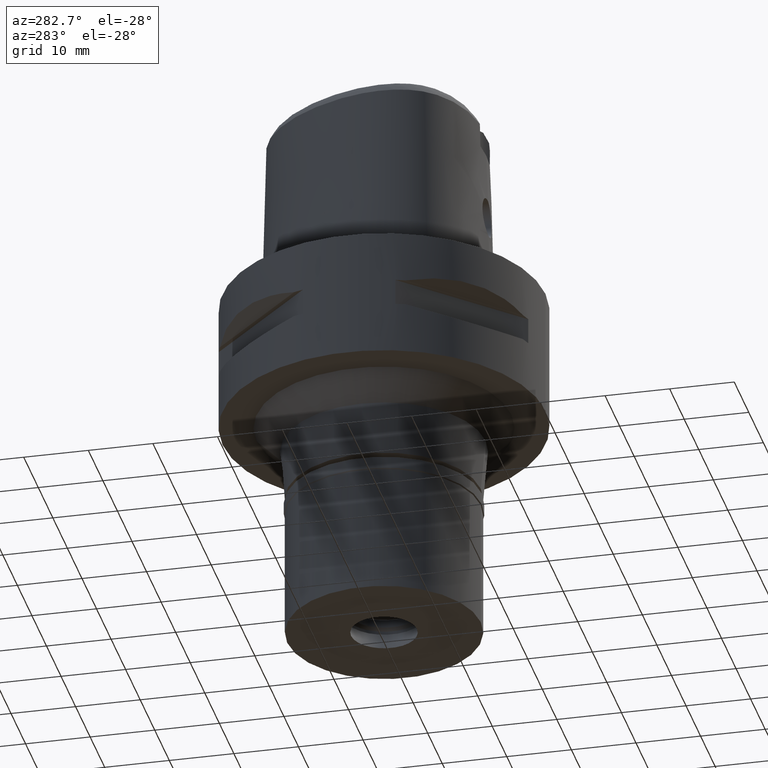
[diagram: clean part render]
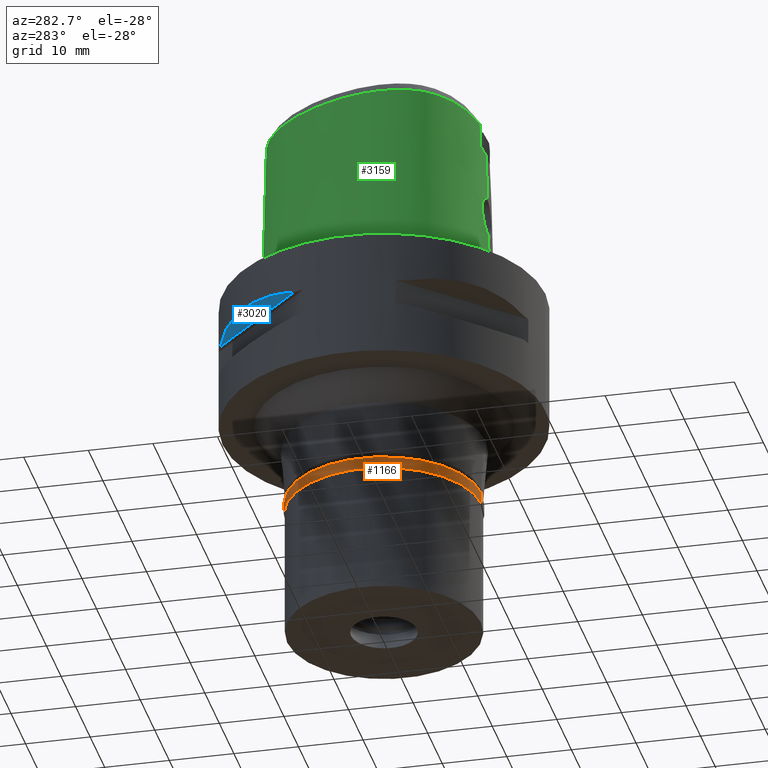
[diagram: same view with three faces highlighted in distinct colors, each labeled with its STEP entity id]
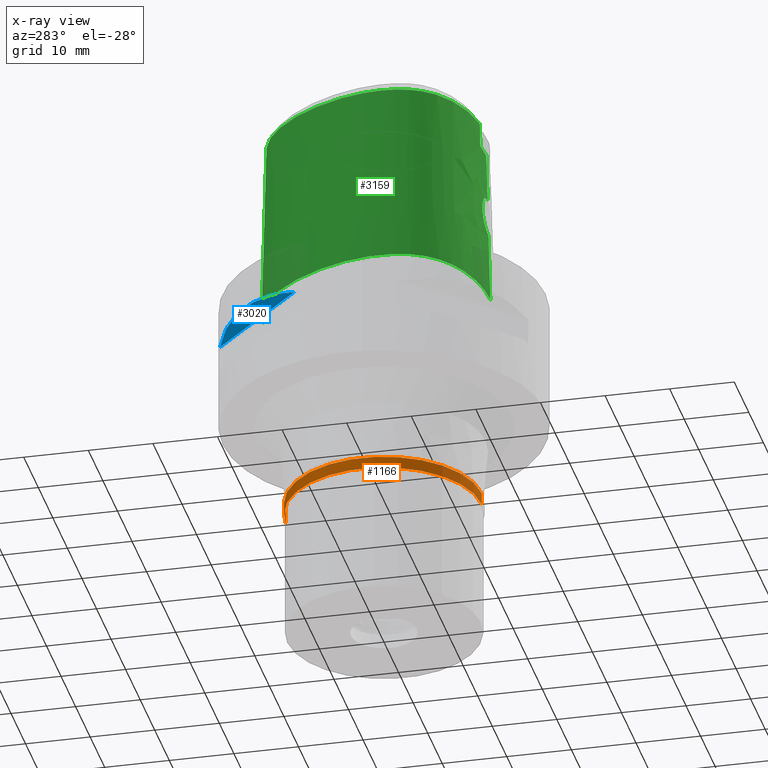
[diagram: x-ray of the same camera — body ghosted, the three highlighted faces saturated]
A machine part, auxiliary view with three faces highlighted in distinct colors.
The next image is the same camera in x-ray (body ghosted, the three faces saturated) — at least one of them is partly hidden behind the body in this view.
Their STEP definitions:

[orange] entity #1166 — the highlighted cylindrical surface (partial cylindrical patch) has radius 15.15 mm, axis along (0, 0, -1).
#61 = CARTESIAN_POINT ( 'NONE',  ( 0.0000000000000000000, -15.15000000000000036, 0.0000000000000000000 ) ) ;
#199 = AXIS2_PLACEMENT_3D ( 'NONE', #1484, #2929, #1864 ) ;
#392 = VERTEX_POINT ( 'NONE', #1772 ) ;
#546 = DIRECTION ( 'NONE',  ( 0.0000000000000000000, 0.0000000000000000000, -1.000000000000000000 ) ) ;
#657 = LINE ( 'NONE', #3835, #4616 ) ;
#1012 = DIRECTION ( 'NONE',  ( 0.0000000000000000000, 0.0000000000000000000, -1.000000000000000000 ) ) ;
#1039 = ORIENTED_EDGE ( 'NONE', *, *, #3707, .T. ) ;
#1166 = ADVANCED_FACE ( 'NONE', ( #2545 ), #2999, .T. ) ;
#1211 = LINE ( 'NONE', #2260, #2714 ) ;
#1226 = CARTESIAN_POINT ( 'NONE',  ( 0.0000000000000000000, 15.15000000000000036, -1.850000000000000089 ) ) ;
#1230 = EDGE_LOOP ( 'NONE', ( #2144, #2875, #4242, #1039 ) ) ;
#1409 = CARTESIAN_POINT ( 'NONE',  ( 0.0000000000000000000, -15.15000000000000036, -1.850000000000000089 ) ) ;
#1484 = CARTESIAN_POINT ( 'NONE',  ( 0.0000000000000000000, 0.0000000000000000000, 0.0000000000000000000 ) ) ;
#1772 = CARTESIAN_POINT ( 'NONE',  ( 0.0000000000000000000, 15.15000000000000036, 0.0000000000000000000 ) ) ;
#1864 = DIRECTION ( 'NONE',  ( 0.0000000000000000000, -1.000000000000000000, 0.0000000000000000000 ) ) ;
#2144 = ORIENTED_EDGE ( 'NONE', *, *, #3833, .T. ) ;
#2260 = CARTESIAN_POINT ( 'NONE',  ( 0.0000000000000000000, -15.15000000000000036, 0.0000000000000000000 ) ) ;
#2300 = DIRECTION ( 'NONE',  ( 0.0000000000000000000, 0.0000000000000000000, -1.000000000000000000 ) ) ;
#2545 = FACE_OUTER_BOUND ( 'NONE', #1230, .T. ) ;
#2566 = AXIS2_PLACEMENT_3D ( 'NONE', #2786, #4206, #4631 ) ;
#2712 = AXIS2_PLACEMENT_3D ( 'NONE', #4111, #2300, #3759 ) ;
#2714 = VECTOR ( 'NONE', #546, 1000.000000000000000 ) ;
#2786 = CARTESIAN_POINT ( 'NONE',  ( 0.0000000000000000000, 0.0000000000000000000, -1.850000000000000089 ) ) ;
#2875 = ORIENTED_EDGE ( 'NONE', *, *, #3590, .F. ) ;
#2929 = DIRECTION ( 'NONE',  ( 0.0000000000000000000, 0.0000000000000000000, -1.000000000000000000 ) ) ;
#2934 = EDGE_CURVE ( 'NONE', #3273, #392, #3475, .T. ) ;
#2999 = CYLINDRICAL_SURFACE ( 'NONE', #199, 15.15000000000000036 ) ;
#3273 = VERTEX_POINT ( 'NONE', #61 ) ;
#3475 = CIRCLE ( 'NONE', #2712, 15.15000000000000036 ) ;
#3590 = EDGE_CURVE ( 'NONE', #3273, #3894, #1211, .T. ) ;
#3707 = EDGE_CURVE ( 'NONE', #392, #4092, #657, .T. ) ;
#3759 = DIRECTION ( 'NONE',  ( 0.0000000000000000000, -1.000000000000000000, 0.0000000000000000000 ) ) ;
#3833 = EDGE_CURVE ( 'NONE', #4092, #3894, #4306, .T. ) ;
#3835 = CARTESIAN_POINT ( 'NONE',  ( 0.0000000000000000000, 15.15000000000000036, 0.0000000000000000000 ) ) ;
#3894 = VERTEX_POINT ( 'NONE', #1409 ) ;
#4092 = VERTEX_POINT ( 'NONE', #1226 ) ;
#4111 = CARTESIAN_POINT ( 'NONE',  ( 0.0000000000000000000, 0.0000000000000000000, 0.0000000000000000000 ) ) ;
#4206 = DIRECTION ( 'NONE',  ( 0.0000000000000000000, 0.0000000000000000000, 1.000000000000000000 ) ) ;
#4242 = ORIENTED_EDGE ( 'NONE', *, *, #2934, .T. ) ;
#4306 = CIRCLE ( 'NONE', #2566, 15.15000000000000036 ) ;
#4616 = VECTOR ( 'NONE', #1012, 1000.000000000000000 ) ;
#4631 = DIRECTION ( 'NONE',  ( 0.0000000000000000000, 1.000000000000000000, 0.0000000000000000000 ) ) ;

[blue] entity #3020 — the highlighted planar face has unit normal (0.3536, -0.3536, 0.866).
#145 = CARTESIAN_POINT ( 'NONE',  ( -8.646484890751999330, 23.45715880140000209, -7.949999999998999201 ) ) ;
#259 = CARTESIAN_POINT ( 'NONE',  ( -8.646484890751999330, 23.45715880140000209, -7.949999999998999201 ) ) ;
#373 = CARTESIAN_POINT ( 'NONE',  ( -18.93096040785499667, 16.42437865147239506, -6.622496303240422044 ) ) ;
#530 = AXIS2_PLACEMENT_3D ( 'NONE', #2128, #1452, #1052 ) ;
#653 = FACE_OUTER_BOUND ( 'NONE', #3614, .T. ) ;
#720 = PLANE ( 'NONE',  #530 ) ;
#1041 = CARTESIAN_POINT ( 'NONE',  ( -22.82437128824117778, 10.36318218117757084, -7.507495686413089508 ) ) ;
#1052 = DIRECTION ( 'NONE',  ( -0.7071067811865475727, -0.7071067811865475727, 0.0000000000000000000 ) ) ;
#1262 = B_SPLINE_CURVE_WITH_KNOTS ( 'NONE', 3,
 ( #259, #1608, #1392, #3617, #2857, #373, #2834, #4284, #1041, #4257 ),
 .UNSPECIFIED., .F., .F.,
 ( 4, 2, 2, 2, 4 ),
 ( 0.0000000000000000000, 0.2500000000000000000, 0.5000000000000000000, 0.7500000000000000000, 1.000000000000000000 ),
 .UNSPECIFIED. ) ;
#1310 = CARTESIAN_POINT ( 'NONE',  ( -8.646484890753999508, 23.45715880140000209, -7.950000000000000178 ) ) ;
#1392 = CARTESIAN_POINT ( 'NONE',  ( -11.99631184318435828, 22.00754773654067264, -7.175632472871791734 ) ) ;
#1452 = DIRECTION ( 'NONE',  ( 0.3535533905933054277, -0.3535533905933054277, 0.8660254037844128394 ) ) ;
#1608 = CARTESIAN_POINT ( 'NONE',  ( -10.36314631865845293, 22.82438450743504887, -7.507504930511915475 ) ) ;
#1992 = ORIENTED_EDGE ( 'NONE', *, *, #4557, .F. ) ;
#2035 = EDGE_CURVE ( 'NONE', #3505, #2863, #4560, .T. ) ;
#2128 = CARTESIAN_POINT ( 'NONE',  ( -29.34493141923999815, 8.131727983644998048, -5.756475521456000166 ) ) ;
#2630 = ORIENTED_EDGE ( 'NONE', *, *, #2035, .T. ) ;
#2747 = DIRECTION ( 'NONE',  ( -0.7071067811865474617, -0.7071067811865474617, 0.0000000000000000000 ) ) ;
#2834 = CARTESIAN_POINT ( 'NONE',  ( -20.06074199769975763, 15.02698525043419231, -6.733118915137217719 ) ) ;
#2857 = CARTESIAN_POINT ( 'NONE',  ( -16.42437865147239151, 18.93096040785500378, -6.622505547239575741 ) ) ;
#2863 = VERTEX_POINT ( 'NONE', #3705 ) ;
#3020 = ADVANCED_FACE ( 'NONE', ( #653 ), #720, .F. ) ;
#3505 = VERTEX_POINT ( 'NONE', #145 ) ;
#3614 = EDGE_LOOP ( 'NONE', ( #2630, #1992 ) ) ;
#3617 = CARTESIAN_POINT ( 'NONE',  ( -15.02693924554285765, 20.06077645869683579, -6.733132781285455337 ) ) ;
#3705 = CARTESIAN_POINT ( 'NONE',  ( -23.45715880140000209, 8.646484890751999330, -7.949999999998999201 ) ) ;
#3742 = VECTOR ( 'NONE', #2747, 1000.000000000000114 ) ;
#4257 = CARTESIAN_POINT ( 'NONE',  ( -23.45715880140000209, 8.646484890751999330, -7.949999999998999201 ) ) ;
#4284 = CARTESIAN_POINT ( 'NONE',  ( -22.00752022560863352, 11.99636231257077057, -7.175618606723550563 ) ) ;
#4557 = EDGE_CURVE ( 'NONE', #3505, #2863, #1262, .T. ) ;
#4560 = LINE ( 'NONE', #1310, #3742 ) ;

[green] entity #3159 — the highlighted face is a freeform B-spline surface patch.
#16 = CARTESIAN_POINT ( 'NONE',  ( -1.554703153563999914E-14, -16.18126839358999902, 10.94999999999999929 ) ) ;
#29 = CARTESIAN_POINT ( 'NONE',  ( -13.96223197999000121, 8.061115246591999295, 19.20397318492999972 ) ) ;
#38 = CARTESIAN_POINT ( 'NONE',  ( -3.049824927879424497, -15.93655077169100309, 14.05642184548880103 ) ) ;
#46 = ORIENTED_EDGE ( 'NONE', *, *, #239, .F. ) ;
#57 = CARTESIAN_POINT ( 'NONE',  ( -0.4764647934626000114, 18.48199767626999801, 9.316779069917000555 ) ) ;
#65 = CARTESIAN_POINT ( 'NONE',  ( -1.242307938993182148, -16.00785729300589821, 16.78681037246188268 ) ) ;
#80 = CARTESIAN_POINT ( 'NONE',  ( -4.416345067468000707, 17.06979529917999727, 29.09116729994000039 ) ) ;
#89 = CARTESIAN_POINT ( 'NONE',  ( -3.034583891714913495, -15.94895941309943943, 13.63502601943416970 ) ) ;
#103 = CARTESIAN_POINT ( 'NONE',  ( -4.735056268372000332, 17.74784408726999985, -0.5704150450970000286 ) ) ;
#110 = CARTESIAN_POINT ( 'NONE',  ( -2.058477982415490182, -15.97280911655299462, 16.25114646141187791 ) ) ;
#150 = CARTESIAN_POINT ( 'NONE',  ( -16.22974785938000153, -8.250337534536999584, 19.20397318492999972 ) ) ;
#158 = CARTESIAN_POINT ( 'NONE',  ( -3.168920966622999824, -15.55911077538999976, 28.52071192346999950 ) ) ;
#174 = CARTESIAN_POINT ( 'NONE',  ( -16.70311388308000033, -7.028822789707000140, 19.20397318492999972 ) ) ;
#181 = CARTESIAN_POINT ( 'NONE',  ( -2.824889915666126683, -15.99077017854531135, 12.85000038591439520 ) ) ;
#196 = CARTESIAN_POINT ( 'NONE',  ( 0.7074880593537000717, -15.72098067140000133, 29.09116729994000039 ) ) ;
#217 = CARTESIAN_POINT ( 'NONE',  ( -8.951632343914999623, -15.05250172592000091, -0.5704150450970000286 ) ) ;
#238 = CARTESIAN_POINT ( 'NONE',  ( -11.69401646853000010, -13.71637918561999925, -0.5704150450970000286 ) ) ;
#239 = EDGE_CURVE ( 'NONE', #1796, #996, #545, .T. ) ;
#287 = CARTESIAN_POINT ( 'NONE',  ( -15.84228689413132152, 3.460033471612388389, 28.52071192347000661 ) ) ;
#306 = CARTESIAN_POINT ( 'NONE',  ( -2.586864991386999930E-11, 17.98202997909999823, 28.52071728569000086 ) ) ;
#360 = CARTESIAN_POINT ( 'NONE',  ( -2.141703876426721553, -15.96853876278745865, 16.17154979309858120 ) ) ;
#385 = CARTESIAN_POINT ( 'NONE',  ( -0.9918111675000609306, -16.01535581899760174, 16.88506724273041115 ) ) ;
#397 = CARTESIAN_POINT ( 'NONE',  ( 0.3639062049289000234, 18.20947610540999761, 19.20397318492999972 ) ) ;
#407 = CARTESIAN_POINT ( 'NONE',  ( -1.554703153563999914E-14, -16.18126839358999902, 10.94999999999999929 ) ) ;
#439 = CARTESIAN_POINT ( 'NONE',  ( -0.7697301588352267743, -16.02069608121232136, 16.95306822108534206 ) ) ;
#463 = CARTESIAN_POINT ( 'NONE',  ( -1.373538993479750614, -16.00309257910405236, 16.73054149614695518 ) ) ;
#484 = CARTESIAN_POINT ( 'NONE',  ( -2.730584062092613173, -16.00653558153988953, 12.62660481203578655 ) ) ;
#504 = CARTESIAN_POINT ( 'NONE',  ( 0.5455909826877000102, 18.19844093600000079, 19.20397318492999972 ) ) ;
#515 = CARTESIAN_POINT ( 'NONE',  ( -2.174677771866030618, -16.07406137453003225, 11.86146385147683091 ) ) ;
#528 = CARTESIAN_POINT ( 'NONE',  ( -16.00394160127999754, -9.239879991250999680, 9.316779069917000555 ) ) ;
#537 = CARTESIAN_POINT ( 'NONE',  ( -1.200013527206758912, -16.14948725505790961, 11.19595997395656362 ) ) ;
#545 = B_SPLINE_CURVE_WITH_KNOTS ( 'NONE', 3,
 ( #1684, #1711, #4245, #3910 ),
 .UNSPECIFIED., .F., .F.,
 ( 4, 4 ),
 ( 0.0000000000000000000, 1.000000000000000000 ),
 .UNSPECIFIED. ) ;
#553 = CARTESIAN_POINT ( 'NONE',  ( -16.46533660580000102, -6.958244161015999296, 29.09116729994000039 ) ) ;
#576 = CARTESIAN_POINT ( 'NONE',  ( -11.57144722187000063, -13.50085871829000084, 9.316779069917000555 ) ) ;
#586 = CARTESIAN_POINT ( 'NONE',  ( -1.815078991237664141, -16.10801477429533790, 11.54053730984331949 ) ) ;
#602 = CARTESIAN_POINT ( 'NONE',  ( -16.84071362873999789, -5.352498050683998976, 29.09116729994000039 ) ) ;
#609 = CARTESIAN_POINT ( 'NONE',  ( -1.893775706190659935, 17.84807082154017976, 28.52071192347000661 ) ) ;
#646 = CARTESIAN_POINT ( 'NONE',  ( -13.06460239553224589, -11.91950051571953750, 28.52071192347000661 ) ) ;
#667 = ORIENTED_EDGE ( 'NONE', *, *, #1675, .T. ) ;
#669 = CARTESIAN_POINT ( 'NONE',  ( -7.523733151594613311, 15.26501052509748035, 28.52071192347000661 ) ) ;
#671 = CARTESIAN_POINT ( 'NONE',  ( 2.030224829794000080E-07, -15.83752876601000281, 24.70000006102999990 ) ) ;
#673 = VERTEX_POINT ( 'NONE', #3860 ) ;
#721 = CARTESIAN_POINT ( 'NONE',  ( -3.025555691221172072, -15.93071033668211989, 14.39757235766038157 ) ) ;
#742 = CARTESIAN_POINT ( 'NONE',  ( 6.782942639621067406E-08, -15.90128720080247859, 22.15000025259059768 ) ) ;
#746 = CARTESIAN_POINT ( 'NONE',  ( -1.158058137637339335, -16.01049628562386218, 16.82159748549268485 ) ) ;
#761 = VERTEX_POINT ( 'NONE', #2474 ) ;
#762 = CARTESIAN_POINT ( 'NONE',  ( -11.09665475987000072, 12.14079257763000008, 19.20397318492999972 ) ) ;
#770 = CARTESIAN_POINT ( 'NONE',  ( -2.956574956295315637, -15.96722071638538232, 13.24385841091114457 ) ) ;
#782 = CARTESIAN_POINT ( 'NONE',  ( -1.992618717028999731, 18.32080801904999845, 9.316779069917000555 ) ) ;
#791 = CARTESIAN_POINT ( 'NONE',  ( -3.011162289058671337, -15.92984750866467003, 14.49530027127327259 ) ) ;
#813 = CARTESIAN_POINT ( 'NONE',  ( -11.47659489173000047, 12.46143685412999957, -0.5704150450970000286 ) ) ;
#820 = CARTESIAN_POINT ( 'NONE',  ( -2.622357955510399297, -15.94286194441479232, 15.56063891274044586 ) ) ;
#822 = B_SPLINE_CURVE_WITH_KNOTS ( 'NONE', 3,
 ( #2868, #742, #3224, #3953 ),
 .UNSPECIFIED., .F., .F.,
 ( 4, 4 ),
 ( 0.0000000000000000000, 1.000000000000000000 ),
 .UNSPECIFIED. ) ;
#839 = CARTESIAN_POINT ( 'NONE',  ( -17.26695523061000159, -0.2694874947058999992, 9.316779069917000555 ) ) ;
#847 = CARTESIAN_POINT ( 'NONE',  ( -1.994582999655111655, -16.09263229042448273, 11.67925548029542604 ) ) ;
#867 = CARTESIAN_POINT ( 'NONE',  ( -2.829334356301473452, -15.99004057957363933, 12.86097490944682065 ) ) ;
#883 = CARTESIAN_POINT ( 'NONE',  ( -15.57503049291999986, -8.992248046660998639, 29.09116729994000039 ) ) ;
#893 = CARTESIAN_POINT ( 'NONE',  ( -2.182562173271474393, -16.07324531854154870, 11.86950442956013418 ) ) ;
#916 = CARTESIAN_POINT ( 'NONE',  ( -0.3810500462981831205, -16.18126839358999547, 10.94999999999999751 ) ) ;
#928 = CARTESIAN_POINT ( 'NONE',  ( -16.45596359428000000, -8.350972077398999716, 9.316779069917000555 ) ) ;
#930 = CARTESIAN_POINT ( 'NONE',  ( -7.967839663531117722, 15.83070312411851255, 4.456852294447595508E-08 ) ) ;
#935 = CARTESIAN_POINT ( 'NONE',  ( -1.476316647936803728, -16.13287196879497287, 11.32960023782674597 ) ) ;
#953 = CARTESIAN_POINT ( 'NONE',  ( -1.309813745332999879, -16.25411902862999725, 9.316779069917000555 ) ) ;
#956 = CARTESIAN_POINT ( 'NONE',  ( -8.946741555803017221, -15.03902343644842965, 4.456852294447595508E-08 ) ) ;
#978 = CARTESIAN_POINT ( 'NONE',  ( -8.782085035946998630, -14.58525439407999968, 19.20397318492999972 ) ) ;
#996 = VERTEX_POINT ( 'NONE', #3919 ) ;
#1055 = ORIENTED_EDGE ( 'NONE', *, *, #4225, .T. ) ;
#1100 = VECTOR ( 'NONE', #4418, 1000.000000000000114 ) ;
#1103 = CARTESIAN_POINT ( 'NONE',  ( -1.142694325567372271, -16.01097250410823847, 16.82786610158998641 ) ) ;
#1145 = CARTESIAN_POINT ( 'NONE',  ( 0.5305683991764998941, 17.95174159962000004, 29.09116729994000039 ) ) ;
#1154 = CARTESIAN_POINT ( 'NONE',  ( -2.811030699957968171, -15.93354326983758007, 15.18348231763440026 ) ) ;
#1173 = CARTESIAN_POINT ( 'NONE',  ( 0.0000000000000000000, -16.02877864023999877, 17.05000000000000071 ) ) ;
#1195 = CARTESIAN_POINT ( 'NONE',  ( -16.06260376082000008, 3.539545222457999962, 19.20397318492999972 ) ) ;
#1223 = CARTESIAN_POINT ( 'NONE',  ( -2.195701159994725593, -16.07187846679633836, 11.88304807993728573 ) ) ;
#1236 = CARTESIAN_POINT ( 'NONE',  ( 1.089046662607999982, -16.44835922784000104, -0.5704150450970000286 ) ) ;
#1242 = CARTESIAN_POINT ( 'NONE',  ( -1.356703372998572910, -16.14047031620339823, 11.26799205868798914 ) ) ;
#1260 = CARTESIAN_POINT ( 'NONE',  ( -15.78948604710000225, -9.116064018955999160, 19.20397318492999972 ) ) ;
#1286 = CARTESIAN_POINT ( 'NONE',  ( -16.66912842037759290, -8.445800780797041440, 4.456852294447595508E-08 ) ) ;
#1328 = CARTESIAN_POINT ( 'NONE',  ( -17.22987901032000124, -3.272349405339000317, 19.20397318492999972 ) ) ;
#1330 = CARTESIAN_POINT ( 'NONE',  ( -16.20602471867521999, -9.356552733816064560, 4.456852294447595508E-08 ) ) ;
#1373 = EDGE_LOOP ( 'NONE', ( #2724, #2310, #1619, #1055, #46, #667, #3234, #3729 ) ) ;
#1381 = CARTESIAN_POINT ( 'NONE',  ( -13.75951393052754312, 7.944084103042394318, 28.52071192347000661 ) ) ;
#1384 = CARTESIAN_POINT ( 'NONE',  ( 2.030224829794000080E-07, -15.83752876601000281, 24.70000006102999990 ) ) ;
#1453 = CARTESIAN_POINT ( 'NONE',  ( -0.3779032276301231841, -16.02723910518711037, 17.03303867402923188 ) ) ;
#1457 = EDGE_CURVE ( 'NONE', #1486, #673, #4296, .T. ) ;
#1467 = CARTESIAN_POINT ( 'NONE',  ( 0.5756361497102000513, 18.69183960876999961, -0.5704150450970000286 ) ) ;
#1486 = VERTEX_POINT ( 'NONE', #407 ) ;
#1492 = CARTESIAN_POINT ( 'NONE',  ( -0.4893119567967000316, 18.72969241654000072, -0.5704150450970000286 ) ) ;
#1500 = CARTESIAN_POINT ( 'NONE',  ( -1.935963191585573950, -15.97880297965674146, 16.35789645993600416 ) ) ;
#1510 = EDGE_CURVE ( 'NONE', #761, #1486, #4502, .T. ) ;
#1522 = CARTESIAN_POINT ( 'NONE',  ( -2.858245058388834803, -15.98521885152586997, 12.93503207759447271 ) ) ;
#1535 = CARTESIAN_POINT ( 'NONE',  ( -16.53021709395000016, 3.708305587452000118, -0.5704150450970000286 ) ) ;
#1544 = CARTESIAN_POINT ( 'NONE',  ( -2.131262031312746608, -15.96908295479664375, 16.18183145237360065 ) ) ;
#1564 = CARTESIAN_POINT ( 'NONE',  ( 0.3838142950141000265, 18.70350313382999730, -0.5704150450970000286 ) ) ;
#1571 = CARTESIAN_POINT ( 'NONE',  ( -2.259323690733908485, -16.06516778719728933, 11.95053605136360275 ) ) ;
#1584 = CARTESIAN_POINT ( 'NONE',  ( -4.965998047307000007, -15.68039665444000086, 19.20397318492999972 ) ) ;
#1587 = B_SPLINE_CURVE_WITH_KNOTS ( 'NONE', 3,
 ( #671, #2557, #2533, #3981 ),
 .UNSPECIFIED., .F., .F.,
 ( 4, 4 ),
 ( 0.0000000000000000000, 1.000000000000000000 ),
 .UNSPECIFIED. ) ;
#1591 = CARTESIAN_POINT ( 'NONE',  ( -3.738627773282115374, -15.49270868799731105, 28.52071192347000661 ) ) ;
#1606 = CARTESIAN_POINT ( 'NONE',  ( -11.44887797521000117, -13.28533825097000154, 19.20397318492999972 ) ) ;
#1619 = ORIENTED_EDGE ( 'NONE', *, *, #4207, .F. ) ;
#1633 = CARTESIAN_POINT ( 'NONE',  ( -17.47781003957999957, -3.270737582788999731, 9.316779069917000555 ) ) ;
#1641 = CARTESIAN_POINT ( 'NONE',  ( -1.559389139925164258, -16.12714998460689841, 11.37682489576853939 ) ) ;
#1654 = CARTESIAN_POINT ( 'NONE',  ( -4.922186698259000792, -15.43572463495000058, 29.09116729994000039 ) ) ;
#1657 = CARTESIAN_POINT ( 'NONE',  ( -15.64884224165382420, -10.21298828059101105, 4.456852294447595508E-08 ) ) ;
#1674 = CARTESIAN_POINT ( 'NONE',  ( 1.079551355683999958, -16.20136629873000089, 9.316779069917000555 ) ) ;
#1675 = EDGE_CURVE ( 'NONE', #1796, #3395, #3363, .T. ) ;
#1684 = CARTESIAN_POINT ( 'NONE',  ( -3.168920966622999824, -15.55911077538999976, 28.52071192346999950 ) ) ;
#1702 = CARTESIAN_POINT ( 'NONE',  ( -14.38008119593141920, 8.302343749439673459, 4.456852294447595508E-08 ) ) ;
#1710 = CARTESIAN_POINT ( 'NONE',  ( -4.422474562381050411, 17.08283562090540286, 28.52071192347000661 ) ) ;
#1711 = CARTESIAN_POINT ( 'NONE',  ( -3.191384176940533557, -15.58827403572775339, 27.24714128231333277 ) ) ;
#1778 = CARTESIAN_POINT ( 'NONE',  ( -3.168920966622999824, -15.55911077538999976, 28.52071192346999950 ) ) ;
#1796 = VERTEX_POINT ( 'NONE', #1778 ) ;
#1807 = CARTESIAN_POINT ( 'NONE',  ( -1.078092996241643009, -16.01291421262466486, 16.85331982578687970 ) ) ;
#1831 = CARTESIAN_POINT ( 'NONE',  ( -2.807214950452352475, -15.93370539144433096, 15.19250501643233520 ) ) ;
#1844 = CARTESIAN_POINT ( 'NONE',  ( -13.74710169009999916, 7.936918393353000312, 29.09116729994000039 ) ) ;
#1856 = CARTESIAN_POINT ( 'NONE',  ( -1.632041163306928278, -15.99246882729762831, 16.57855253940446616 ) ) ;
#1882 = CARTESIAN_POINT ( 'NONE',  ( -2.953065963655788551, -15.92877137018404099, 14.78840609674671924 ) ) ;
#1901 = CARTESIAN_POINT ( 'NONE',  ( -2.017367349001470078, -15.97484328634751449, 16.28779616179436474 ) ) ;
#1917 = CARTESIAN_POINT ( 'NONE',  ( -15.82879709424999959, 3.455165039960999884, 29.09116729994000039 ) ) ;
#1942 = CARTESIAN_POINT ( 'NONE',  ( -13.20908616388000034, -12.10346099594000080, 19.20397318492999972 ) ) ;
#1964 = CARTESIAN_POINT ( 'NONE',  ( -15.46013576020000002, -10.07579647775999909, 9.316779069917000555 ) ) ;
#1966 = CARTESIAN_POINT ( 'NONE',  ( -16.51672824674781026, 3.703437499619889106, 4.456852294447595508E-08 ) ) ;
#1972 = CARTESIAN_POINT ( 'NONE',  ( -2.826844069429284900, -15.99044987528936268, 12.85480845978062447 ) ) ;
#1988 = CARTESIAN_POINT ( 'NONE',  ( -14.25868455078999908, -10.78027770309000033, 29.09116729994000039 ) ) ;
#2013 = CARTESIAN_POINT ( 'NONE',  ( -17.57791640581000081, -5.458025467142999965, -0.5704150450970000286 ) ) ;
#2017 = CARTESIAN_POINT ( 'NONE',  ( -2.040572357437682172, 18.55015624889766812, 4.456852294447595508E-08 ) ) ;
#2037 = CARTESIAN_POINT ( 'NONE',  ( -1.321318947469000138, -16.50155085486000317, -0.5704150450970000286 ) ) ;
#2058 = CARTESIAN_POINT ( 'NONE',  ( -17.71143735449586387, -3.269218750007822472, 4.456852294447595508E-08 ) ) ;
#2084 = CARTESIAN_POINT ( 'NONE',  ( -16.47905549557287941, -6.962316292879934920, 28.52071192347000661 ) ) ;
#2091 = CARTESIAN_POINT ( 'NONE',  ( 1.148496333179999941E-10, 18.69499999997000117, 2.166785269726999959E-13 ) ) ;
#2154 = CARTESIAN_POINT ( 'NONE',  ( -1.882790485501109057, -15.98129791348982742, 16.40036414344486104 ) ) ;
#2180 = CARTESIAN_POINT ( 'NONE',  ( -1.728279104605983330, -15.98834812986987508, 16.51637506550583723 ) ) ;
#2192 = CARTESIAN_POINT ( 'NONE',  ( -14.39249255977999908, 8.309508953071000903, -0.5704150450970000286 ) ) ;
#2201 = CARTESIAN_POINT ( 'NONE',  ( -2.913317027167433793, -15.97548062098996091, 13.09571559067297741 ) ) ;
#2213 = CARTESIAN_POINT ( 'NONE',  ( -1.941729139210000010, 18.07741805966999848, 19.20397318492999972 ) ) ;
#2226 = CARTESIAN_POINT ( 'NONE',  ( -3.050611165022393045, -15.94224918866619589, 13.82644952996236931 ) ) ;
#2267 = CARTESIAN_POINT ( 'NONE',  ( -17.02224546717000209, -0.3128849380671999691, 19.20397318492999972 ) ) ;
#2286 = CARTESIAN_POINT ( 'NONE',  ( 0.5606135661989999353, 18.44514027239000242, 9.316779069917000555 ) ) ;
#2310 = ORIENTED_EDGE ( 'NONE', *, *, #1510, .F. ) ;
#2319 = CARTESIAN_POINT ( 'NONE',  ( -1.554703153563999914E-14, -16.18126839358999902, 10.94999999999999929 ) ) ;
#2355 = CARTESIAN_POINT ( 'NONE',  ( -5.053620745401999237, -16.16974069343000053, -0.5704150450970000286 ) ) ;
#2363 = CARTESIAN_POINT ( 'NONE',  ( -1.186325143584368247, -16.15021396850476876, 11.19016780248603915 ) ) ;
#2385 = CARTESIAN_POINT ( 'NONE',  ( -8.866858689931001791, -14.81887806000000118, 9.316779069917000555 ) ) ;
#2389 = CARTESIAN_POINT ( 'NONE',  ( -5.051093167374874682, -16.15562499889496451, 4.456852294447595508E-08 ) ) ;
#2409 = CARTESIAN_POINT ( 'NONE',  ( -17.72574106884000145, -3.269125760237999945, -0.5704150450970000286 ) ) ;
#2436 = CARTESIAN_POINT ( 'NONE',  ( -16.01658395504062327, -8.155509241189923486, 28.52071192347000661 ) ) ;
#2462 = CARTESIAN_POINT ( 'NONE',  ( -15.07117015428374707, -9.793013966485178301, 28.52071192347000661 ) ) ;
#2474 = CARTESIAN_POINT ( 'NONE',  ( 0.0000000000000000000, -16.02877864023999877, 17.05000000000000071 ) ) ;
#2511 = CARTESIAN_POINT ( 'NONE',  ( -2.812302102074136112, -15.93348951040951889, 15.18046542078045924 ) ) ;
#2533 = CARTESIAN_POINT ( 'NONE',  ( -2.169052023958434550, -15.77399788493397104, 24.70000016923094321 ) ) ;
#2557 = CARTESIAN_POINT ( 'NONE',  ( -1.084489118009489772, -15.83754148632343295, 24.70000016923094321 ) ) ;
#2563 = CARTESIAN_POINT ( 'NONE',  ( -2.461804698498789357, -15.95146777221880718, 15.81147395167655390 ) ) ;
#2575 = CARTESIAN_POINT ( 'NONE',  ( 0.3738602499714999694, 18.45648961962000101, 9.316779069917000555 ) ) ;
#2596 = CARTESIAN_POINT ( 'NONE',  ( 0.3539521598862999663, 17.96246259119999777, 29.09116729994000039 ) ) ;
#2608 = CARTESIAN_POINT ( 'NONE',  ( -2.729823590237203224, -15.93731275560771365, 15.36107330915371705 ) ) ;
#2626 = CARTESIAN_POINT ( 'NONE',  ( -17.51166499404000021, -0.2260900513445000259, -0.5704150450970000286 ) ) ;
#2648 = CARTESIAN_POINT ( 'NONE',  ( -2.043508294848999984, 18.56419797842000108, -0.5704150450970000286 ) ) ;
#2655 = CARTESIAN_POINT ( 'NONE',  ( -0.7819129404816089757, -16.17123391932780052, 11.02242194583109658 ) ) ;
#2668 = CARTESIAN_POINT ( 'NONE',  ( 1.060560741835000043, -15.70738044050000148, 29.09116729994000039 ) ) ;
#2697 = CARTESIAN_POINT ( 'NONE',  ( 0.7264497207697000469, -16.46229666864000052, -0.5704150450970000286 ) ) ;
#2704 = CARTESIAN_POINT ( 'NONE',  ( -2.404112515870219013, -16.04900922958456633, 12.12204274334903964 ) ) ;
#2719 = CARTESIAN_POINT ( 'NONE',  ( -16.68217932918000201, -8.451606620261999936, -0.5704150450970000286 ) ) ;
#2724 = ORIENTED_EDGE ( 'NONE', *, *, #1457, .F. ) ;
#2741 = CARTESIAN_POINT ( 'NONE',  ( -17.33218214678999658, -5.422849661657000553, 9.316779069917000555 ) ) ;
#2772 = CARTESIAN_POINT ( 'NONE',  ( -14.61870757257999998, -11.12154139877999981, 9.316779069917000555 ) ) ;
#2800 = CARTESIAN_POINT ( 'NONE',  ( -10.91764528035284165, 11.98972044748827059, 28.52071192347000661 ) ) ;
#2868 = CARTESIAN_POINT ( 'NONE',  ( 2.030224829794000080E-07, -15.83752876601000281, 24.70000006102999990 ) ) ;
#2896 = CARTESIAN_POINT ( 'NONE',  ( -2.106937543801091994, -15.97034085296456318, 16.20543992843430559 ) ) ;
#2913 = CARTESIAN_POINT ( 'NONE',  ( -7.976721807037999490, 15.84201699299999788, -0.5704150450970000286 ) ) ;
#2923 = CARTESIAN_POINT ( 'NONE',  ( -0.6712037754365396403, -16.02262050002843807, 16.97689336452321029 ) ) ;
#2937 = FACE_OUTER_BOUND ( 'NONE', #1373, .T. ) ;
#2946 = CARTESIAN_POINT ( 'NONE',  ( -2.148668533315116314, -15.96817483638258572, 16.16465875651317674 ) ) ;
#2960 = CARTESIAN_POINT ( 'NONE',  ( -7.514850380767000182, 15.25369585714999943, 29.09116729994000039 ) ) ;
#2969 = CARTESIAN_POINT ( 'NONE',  ( -2.841609098557100310, -15.98801038425095022, 12.89181881818590725 ) ) ;
#2982 = CARTESIAN_POINT ( 'NONE',  ( -16.29641042737999967, 3.623925404955000040, 9.316779069917000555 ) ) ;
#2993 = CARTESIAN_POINT ( 'NONE',  ( -2.152966461695957623, -15.96794955436805274, 16.16038183590200816 ) ) ;
#3008 = CARTESIAN_POINT ( 'NONE',  ( -0.4507704667943999710, 17.98660819573999703, 29.09116729994000039 ) ) ;
#3010 = B_SPLINE_CURVE_WITH_KNOTS ( 'NONE', 3,
 ( #4535, #3127, #2017, #3865, #930, #3463, #1702, #1966, #3109, #2058, #4171, #3415, #1286, #1330, #1657, #3502, #3817, #4191, #956, #2389, #3845, #3483 ),
 .UNSPECIFIED., .F., .F.,
 ( 4, 1, 1, 1, 1, 1, 1, 1, 1, 1, 1, 1, 1, 1, 1, 1, 1, 1, 1, 4 ),
 ( 0.0000000000000000000, 0.04166666666892000076, 0.08333333333549000632, 0.1666666666687000031, 0.2500000000018000046, 0.3333333333349000061, 0.4166666666681000386, 0.5000000000012000401, 0.5416666666678000563, 0.5833333333343000415, 0.6250000000008999468, 0.6458333333342000104, 0.6666666666675000741, 0.6875000000008000267, 0.7083333333340000593, 0.7500000000005999645, 0.7916666666673000119, 0.8333333333337999971, 0.9166666666670000296, 1.000000000000000000 ),
 .UNSPECIFIED. ) ;
#3032 = CARTESIAN_POINT ( 'NONE',  ( -17.08644788776999945, -5.387673856170000164, 19.20397318492999972 ) ) ;
#3038 = CARTESIAN_POINT ( 'NONE',  ( -1.232286949551668176, -16.14773774345704282, 11.20989535415934313 ) ) ;
#3046 = LINE ( 'NONE', #4455, #4004 ) ;
#3054 = CARTESIAN_POINT ( 'NONE',  ( -16.21839715545999994, -9.363695963544998335, -0.5704150450970000286 ) ) ;
#3060 = CARTESIAN_POINT ( 'NONE',  ( -1.260508854105774956, -16.14614585312796535, 11.22258072031650222 ) ) ;
#3083 = CARTESIAN_POINT ( 'NONE',  ( -15.25987581974000129, -9.930205176089000219, 19.20397318492999972 ) ) ;
#3096 = VERTEX_POINT ( 'NONE', #1384 ) ;
#3109 = CARTESIAN_POINT ( 'NONE',  ( -17.49754712196979156, -0.2285937501955882245, 4.456852294447595508E-08 ) ) ;
#3126 = CARTESIAN_POINT ( 'NONE',  ( -16.94089116036999698, -7.099401418397000008, 9.316779069917000555 ) ) ;
#3127 = CARTESIAN_POINT ( 'NONE',  ( -0.6801907857716563699, 18.69499999889270114, 4.456852294447595508E-08 ) ) ;
#3133 = CARTESIAN_POINT ( 'NONE',  ( -16.85489160761001770, -5.354527567564900004, 28.52071192347000661 ) ) ;
#3156 = CARTESIAN_POINT ( 'NONE',  ( -8.702202515497511115, -14.36510996955560238, 28.52071192347000661 ) ) ;
#3159 = ADVANCED_FACE ( 'NONE', ( #2937 ), #4041, .T. ) ;
#3224 = CARTESIAN_POINT ( 'NONE',  ( 6.798464048501150303E-08, -15.96503292052253720, 19.60000012629533472 ) ) ;
#3234 = ORIENTED_EDGE ( 'NONE', *, *, #3582, .T. ) ;
#3252 = CARTESIAN_POINT ( 'NONE',  ( -2.326625990271485644, -15.95882732511773305, 15.98688927549495453 ) ) ;
#3264 = CARTESIAN_POINT ( 'NONE',  ( -11.28662482580000059, 12.30111471587999894, 9.316779069917000555 ) ) ;
#3272 = CARTESIAN_POINT ( 'NONE',  ( -3.043609634371823081, -15.93357025189585663, 14.20318119486142017 ) ) ;
#3315 = CARTESIAN_POINT ( 'NONE',  ( -4.628819201404000161, 17.52182782456999988, 9.316779069917000555 ) ) ;
#3325 = CARTESIAN_POINT ( 'NONE',  ( -3.039990053223992739, -15.93276075149418425, 14.25169074548601778 ) ) ;
#3339 = CARTESIAN_POINT ( 'NONE',  ( -14.17736226987999970, 8.185312099832000143, 9.316779069917000555 ) ) ;
#3342 = CARTESIAN_POINT ( 'NONE',  ( -2.586864991386999930E-11, 17.98202997909999823, 28.52071728569000086 ) ) ;
#3345 = CARTESIAN_POINT ( 'NONE',  ( -1.121173150449845668, -16.01163026444578108, 16.83650800593220609 ) ) ;
#3363 = B_SPLINE_CURVE_WITH_KNOTS ( 'NONE', 3,
 ( #158, #1591, #3929, #3156, #4220, #646, #3532, #2462, #3850, #2436, #2084, #3133, #3870, #3489, #287, #1381, #2800, #669, #1710, #609, #4263, #306 ),
 .UNSPECIFIED., .F., .F.,
 ( 4, 1, 1, 1, 1, 1, 1, 1, 1, 1, 1, 1, 1, 1, 1, 1, 1, 1, 1, 4 ),
 ( 0.0000000000000000000, 0.03108635432769280352, 0.1191694130250023492, 0.1632109423735513820, 0.2072524717223118984, 0.2512940010709665550, 0.2733147657451882595, 0.2953355304195156017, 0.3173562950938429994, 0.3393770597681704526, 0.3834185891168251370, 0.4274601184653741281, 0.4715016478140289236, 0.5595847065112327101, 0.6476677652085423009, 0.7357508239057460875, 0.8238338826029498740, 0.9119169413002700120, 0.9559584706488929440, 1.000000000000000000 ),
 .UNSPECIFIED. ) ;
#3371 = CARTESIAN_POINT ( 'NONE',  ( -1.177231715235079967, -16.15069331586062162, 11.18634582559774060 ) ) ;
#3389 = CARTESIAN_POINT ( 'NONE',  ( -8.697311381962999022, -14.35163072814999907, 29.09116729994000039 ) ) ;
#3395 = VERTEX_POINT ( 'NONE', #3342 ) ;
#3413 = CARTESIAN_POINT ( 'NONE',  ( -13.05575578678000070, -11.90823678406999875, 29.09116729994000039 ) ) ;
#3415 = CARTESIAN_POINT ( 'NONE',  ( -17.16495051673507533, -7.165908202806909877, 4.456852294447595508E-08 ) ) ;
#3433 = CARTESIAN_POINT ( 'NONE',  ( -13.36241654098999909, -12.29868520780999930, 9.316779069917000555 ) ) ;
#3461 = CARTESIAN_POINT ( 'NONE',  ( -11.32630872854999993, -13.06981778363999958, 29.09116729994000039 ) ) ;
#3463 = CARTESIAN_POINT ( 'NONE',  ( -11.46563507937770687, 12.45218749927750501, 4.456852294447595508E-08 ) ) ;
#3482 = CARTESIAN_POINT ( 'NONE',  ( 0.7201291669643999915, -16.21519133622999931, 9.316779069917000555 ) ) ;
#3483 = CARTESIAN_POINT ( 'NONE',  ( -1.226586580377999741E-13, -16.45500000000000185, 2.178257574314999904E-13 ) ) ;
#3489 = CARTESIAN_POINT ( 'NONE',  ( -16.79165457291558639, -0.3537785057483422979, 28.52071192347000661 ) ) ;
#3502 = CARTESIAN_POINT ( 'NONE',  ( -14.78833380318412338, -11.28232910079258211, 4.456852294447595508E-08 ) ) ;
#3532 = CARTESIAN_POINT ( 'NONE',  ( -14.26907056455885048, -10.79012254419159866, 28.52071192347000661 ) ) ;
#3582 = EDGE_CURVE ( 'NONE', #3395, #3749, #3046, .T. ) ;
#3608 = CARTESIAN_POINT ( 'NONE',  ( -1.162981053868664683, -16.01034245283341662, 16.81957032396200091 ) ) ;
#3631 = CARTESIAN_POINT ( 'NONE',  ( -2.787539454774627057, -15.93456511311596913, 15.23807398720140505 ) ) ;
#3667 = CARTESIAN_POINT ( 'NONE',  ( -1.890839561389999979, 17.83402810029999941, 29.09116729994000039 ) ) ;
#3679 = CARTESIAN_POINT ( 'NONE',  ( -2.889622640237235807, -15.97981227555971628, 13.02153688370531093 ) ) ;
#3692 = CARTESIAN_POINT ( 'NONE',  ( -10.90668469393999906, 11.98047043937999945, 29.09116729994000039 ) ) ;
#3700 = CARTESIAN_POINT ( 'NONE',  ( -0.9177476022699807556, -16.01723212734331625, 16.90910440642457502 ) ) ;
#3716 = CARTESIAN_POINT ( 'NONE',  ( -16.77753570373999992, -0.3562823814286000257, 29.09116729994000039 ) ) ;
#3729 = ORIENTED_EDGE ( 'NONE', *, *, #4500, .T. ) ;
#3740 = CARTESIAN_POINT ( 'NONE',  ( -7.668807522858000603, 15.44980290243000098, 19.20397318492999972 ) ) ;
#3749 = VERTEX_POINT ( 'NONE', #2091 ) ;
#3752 = CARTESIAN_POINT ( 'NONE',  ( -2.294794538173300147, -16.06130641736883291, 11.99061390803845839 ) ) ;
#3768 = CARTESIAN_POINT ( 'NONE',  ( -5.009809396354999222, -15.92506867394000203, 9.316779069917000555 ) ) ;
#3776 = CARTESIAN_POINT ( 'NONE',  ( -2.578951272864989708, -16.02747642722815868, 12.36860144421805607 ) ) ;
#3792 = CARTESIAN_POINT ( 'NONE',  ( -17.17866843764999629, -7.169980047088000852, -0.5704150450970000286 ) ) ;
#3799 = CARTESIAN_POINT ( 'NONE',  ( -2.788927940503015623, -15.99665711536388990, 12.76178383536609395 ) ) ;
#3815 = CARTESIAN_POINT ( 'NONE',  ( -13.51574691809999962, -12.49390941967999957, -0.5704150450970000286 ) ) ;
#3817 = CARTESIAN_POINT ( 'NONE',  ( -13.50690093411402160, -12.48264648349979211, 4.456852294447595508E-08 ) ) ;
#3822 = CARTESIAN_POINT ( 'NONE',  ( -2.215207555778800685, -16.06984014844886843, 11.90334386957764679 ) ) ;
#3844 = CARTESIAN_POINT ( 'NONE',  ( -1.298308543197999931, -16.00668720240000198, 19.20397318492999972 ) ) ;
#3845 = CARTESIAN_POINT ( 'NONE',  ( -1.683697722462559554, -16.45499999888531661, 4.456852294447595508E-08 ) ) ;
#3850 = CARTESIAN_POINT ( 'NONE',  ( -15.58740380353500221, -8.999391780896104365, 28.52071192347000661 ) ) ;
#3860 = CARTESIAN_POINT ( 'NONE',  ( -1.226586580377999741E-13, -16.45500000000000185, 2.178257574314999904E-13 ) ) ;
#3864 = CARTESIAN_POINT ( 'NONE',  ( -14.79871908347000087, -11.29217324662999999, -0.5704150450970000286 ) ) ;
#3865 = CARTESIAN_POINT ( 'NONE',  ( -4.728927206337268707, 17.73480468648002883, 4.456852294447595508E-08 ) ) ;
#3870 = CARTESIAN_POINT ( 'NONE',  ( -16.99625270563502966, -3.273868231552573338, 28.52071192347000661 ) ) ;
#3910 = CARTESIAN_POINT ( 'NONE',  ( -3.235121119988999983, -15.64755630481999837, 24.69999999999999929 ) ) ;
#3919 = CARTESIAN_POINT ( 'NONE',  ( -3.235121119988999983, -15.64755630481999837, 24.69999999999999929 ) ) ;
#3929 = CARTESIAN_POINT ( 'NONE',  ( -5.902447850707722488, -15.16907854011731160, 28.52071192347000661 ) ) ;
#3953 = CARTESIAN_POINT ( 'NONE',  ( 0.0000000000000000000, -16.02877864023999877, 17.05000000000000071 ) ) ;
#3957 = CARTESIAN_POINT ( 'NONE',  ( -2.894385700767049485, -15.93007040529262675, 14.98374577808852948 ) ) ;
#3981 = CARTESIAN_POINT ( 'NONE',  ( -3.235121119988999983, -15.64755630481999837, 24.69999999999999929 ) ) ;
#3985 = CARTESIAN_POINT ( 'NONE',  ( -1.151913233508637724, -16.01068722405327449, 16.82411170507726794 ) ) ;
#4004 = VECTOR ( 'NONE', #4497, 1000.000000000000114 ) ;
#4012 = CARTESIAN_POINT ( 'NONE',  ( -3.048523758644400061, -15.93544131029447897, 14.10651336708091463 ) ) ;
#4024 = CARTESIAN_POINT ( 'NONE',  ( -0.4636176301285000467, 18.23430293599999885, 19.20397318492999972 ) ) ;
#4033 = CARTESIAN_POINT ( 'NONE',  ( -2.748662832084559415, -15.93638543046213130, 15.32252737360007977 ) ) ;
#4041 = B_SPLINE_SURFACE_WITH_KNOTS ( 'NONE', 3, 3, ( 
 ( #1467, #2286, #504, #1145 ),
 ( #1564, #2575, #397, #2596 ),
 ( #1492, #57, #4024, #3008 ),
 ( #2648, #782, #2213, #3667 ),
 ( #103, #3315, #4436, #80 ),
 ( #2913, #4051, #3740, #2960 ),
 ( #813, #3264, #762, #3692 ),
 ( #2192, #3339, #29, #1844 ),
 ( #1535, #2982, #1195, #1917 ),
 ( #2626, #839, #2267, #3716 ),
 ( #2409, #1633, #1328, #4482 ),
 ( #2013, #2741, #3032, #602 ),
 ( #3792, #3126, #174, #553 ),
 ( #2719, #928, #150, #4214 ),
 ( #3054, #528, #1260, #883 ),
 ( #4577, #1964, #3083, #4508 ),
 ( #3864, #2772, #4188, #1988 ),
 ( #3815, #3433, #1942, #3413 ),
 ( #238, #576, #1606, #3461 ),
 ( #217, #2385, #978, #3389 ),
 ( #2355, #3768, #1584, #1654 ),
 ( #2037, #953, #3844, #4169 ),
 ( #2697, #3482, #4120, #196 ),
 ( #1236, #1674, #4147, #2668 ) ),
 .UNSPECIFIED., .F., .F., .F.,
 ( 4, 1, 1, 1, 1, 1, 1, 1, 1, 1, 1, 1, 1, 1, 1, 1, 1, 1, 1, 1, 1, 4 ),
 ( 4, 4 ),
 ( -0.01173812893926999903, 0.0000000000000000000, 0.04166666666892000076, 0.08333333333549000632, 0.1666666666687000031, 0.2500000000018000046, 0.3333333333349000061, 0.4166666666681000386, 0.5000000000012000401, 0.5416666666678000563, 0.5833333333343000415, 0.6250000000008999468, 0.6458333333342000104, 0.6666666666675000741, 0.6875000000008000267, 0.7083333333340000593, 0.7500000000005999645, 0.7916666666673000119, 0.8333333333337999971, 0.9166666666670000296, 1.000000000000000000, 1.017968513185000035 ),
 ( -1.019083584532999950E-08, 1.000000519733000193 ),
 .UNSPECIFIED. ) ;
#4051 = CARTESIAN_POINT ( 'NONE',  ( -7.822764664948000934, 15.64590994771000076, 9.316779069917000555 ) ) ;
#4062 = CARTESIAN_POINT ( 'NONE',  ( -0.1854961016846018718, -16.02877864023999877, 17.05000000000000426 ) ) ;
#4120 = CARTESIAN_POINT ( 'NONE',  ( 0.7138086131590999361, -15.96808600381999987, 19.20397318492999972 ) ) ;
#4147 = CARTESIAN_POINT ( 'NONE',  ( 1.070056048759000067, -15.95437336960999986, 19.20397318492999972 ) ) ;
#4156 = CARTESIAN_POINT ( 'NONE',  ( -2.517517371321568831, -16.03547723352829379, 12.27357940461152808 ) ) ;
#4169 = CARTESIAN_POINT ( 'NONE',  ( -1.286803341062000117, -15.75925537615999872, 29.09116729994000039 ) ) ;
#4171 = CARTESIAN_POINT ( 'NONE',  ( -17.56373942822037648, -5.455996093591013896, 4.456852294447595508E-08 ) ) ;
#4176 = CARTESIAN_POINT ( 'NONE',  ( -2.362763662423422506, -16.05377502603766260, 12.07005035518399616 ) ) ;
#4188 = CARTESIAN_POINT ( 'NONE',  ( -14.43869606167999997, -10.95090955094000051, 19.20397318492999972 ) ) ;
#4191 = CARTESIAN_POINT ( 'NONE',  ( -11.68694516528556804, -13.70394531153331208, 4.456852294447595508E-08 ) ) ;
#4207 = EDGE_CURVE ( 'NONE', #3096, #761, #822, .T. ) ;
#4214 = CARTESIAN_POINT ( 'NONE',  ( -16.00353212449000040, -8.149702991675001229, 29.09116729994000039 ) ) ;
#4220 = CARTESIAN_POINT ( 'NONE',  ( -11.33338053122058042, -13.08225253589604797, 28.52071192347000661 ) ) ;
#4225 = EDGE_CURVE ( 'NONE', #3096, #996, #1587, .T. ) ;
#4245 = CARTESIAN_POINT ( 'NONE',  ( -3.213444811939455636, -15.61774738279276953, 25.97357064115666603 ) ) ;
#4263 = CARTESIAN_POINT ( 'NONE',  ( -0.6295828121035408342, 17.98203011042150123, 28.52071192347000306 ) ) ;
#4296 = LINE ( 'NONE', #16, #1100 ) ;
#4343 = CARTESIAN_POINT ( 'NONE',  ( -2.668883290289813193, -15.94039891873752524, 15.47898327564463727 ) ) ;
#4371 = CARTESIAN_POINT ( 'NONE',  ( -2.979902507845507476, -15.96225198602893514, 13.34232804961555452 ) ) ;
#4396 = CARTESIAN_POINT ( 'NONE',  ( -2.774915047947621893, -15.93514653659026514, 15.26600868135847477 ) ) ;
#4418 = DIRECTION ( 'NONE',  ( 0.0000000000000000000, -0.02499051295401919642, -0.9996876883618678322 ) ) ;
#4436 = CARTESIAN_POINT ( 'NONE',  ( -4.522582134435999990, 17.29581156186999991, 19.20397318492999972 ) ) ;
#4445 = CARTESIAN_POINT ( 'NONE',  ( -2.801434102284767302, -15.93395332678713672, 15.20608349424963279 ) ) ;
#4455 = CARTESIAN_POINT ( 'NONE',  ( -2.586864991386999930E-11, 17.98202997909999823, 28.52071728569000086 ) ) ;
#4469 = CARTESIAN_POINT ( 'NONE',  ( -1.317659436714442300, -16.14283899386058962, 11.24899376325969591 ) ) ;
#4482 = CARTESIAN_POINT ( 'NONE',  ( -16.98194798105999936, -3.273961227890000103, 29.09116729994000039 ) ) ;
#4489 = CARTESIAN_POINT ( 'NONE',  ( -2.833052668037994160, -15.98942821179901230, 12.87022575903826649 ) ) ;
#4497 = DIRECTION ( 'NONE',  ( 4.932356148883903129E-12, 0.02499051285750950729, -0.9996876883642803469 ) ) ;
#4500 = EDGE_CURVE ( 'NONE', #3749, #673, #3010, .T. ) ;
#4502 = B_SPLINE_CURVE_WITH_KNOTS ( 'NONE', 3,
 ( #1173, #4062, #1453, #2923, #439, #3700, #385, #1807, #3345, #1103, #3985, #746, #3608, #65, #463, #1856, #2180, #2154, #1500, #1901, #110, #2896, #1544, #360, #2946, #2993, #3252, #2563, #820, #4343, #2608, #4033, #4396, #3631, #4445, #1831, #1154, #2511, #3957, #1882, #791, #721, #3325, #3272, #4012, #38, #2226, #89, #4371, #770, #2201, #3679, #1522, #2969, #4489, #867, #1972, #181, #3799, #484, #3776, #4156, #2704, #4176, #3752, #1571, #3822, #1223, #893, #515, #847, #586, #1641, #935, #1242, #4469, #3060, #3038, #537, #2363, #3371, #4518, #2655, #916, #2319 ),
 .UNSPECIFIED., .F., .F.,
 ( 4, 2, 2, 1, 1, 1, 1, 2, 2, 2, 2, 2, 1, 1, 1, 2, 2, 2, 2, 2, 1, 1, 2, 2, 2, 2, 2, 2, 2, 2, 1, 1, 1, 1, 2, 2, 2, 2, 2, 1, 1, 2, 2, 2, 2, 2, 1, 1, 2, 2, 4 ),
 ( 0.0000000000000000000, 0.06250000000003079481, 0.09375000000004621303, 0.1093750000000537625, 0.1171875000000577038, 0.1210937500000596606, 0.1230468750000607986, 0.1240234375000615757, 0.1250000000000623668, 0.1875000000000910938, 0.2187500000001054712, 0.2343750000001126876, 0.2421875000001165457, 0.2460937500001182665, 0.2480468750001193212, 0.2490234375001198486, 0.2500000000001203482, 0.3125000000001466605, 0.3437500000001598166, 0.3593750000001664224, 0.3671875000001694755, 0.3710937500001706968, 0.3730468750001709188, 0.3750000000001711409, 0.4375000000001713629, 0.4687500000001712519, 0.4843750000001708633, 0.5000000000001705303, 0.5625000000001689759, 0.5937500000001683098, 0.6093750000001676437, 0.6171875000001674216, 0.6210937500001670886, 0.6230468750001669775, 0.6240234375001668665, 0.6250000000001668665, 0.6875000000001368905, 0.7187500000001217915, 0.7343750000001141309, 0.7421875000001103562, 0.7460937500001082467, 0.7480468750001072475, 0.7500000000001061373, 0.8125000000000764944, 0.8437500000000616174, 0.8593750000000541789, 0.8671875000000504041, 0.8710937500000486278, 0.8730468750000479616, 0.8750000000000471845, 1.000000000000000000 ),
 .UNSPECIFIED. ) ;
#4508 = CARTESIAN_POINT ( 'NONE',  ( -15.05961587928999812, -9.784613874423000013, 29.09116729994000039 ) ) ;
#4518 = CARTESIAN_POINT ( 'NONE',  ( -1.174222235879519349, -16.15085139348271071, 11.18508528887091558 ) ) ;
#4535 = CARTESIAN_POINT ( 'NONE',  ( 1.148496333179999941E-10, 18.69499999997000117, 2.166785269726999959E-13 ) ) ;
#4577 = CARTESIAN_POINT ( 'NONE',  ( -15.66039570065999875, -10.22138777941999876, -0.5704150450970000286 ) ) ;